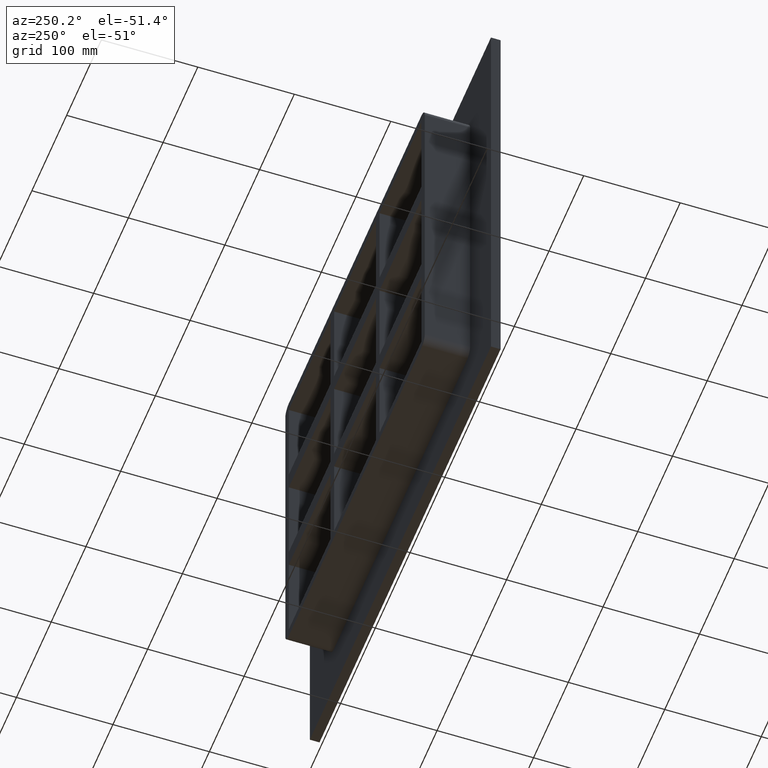
[diagram: clean part render]
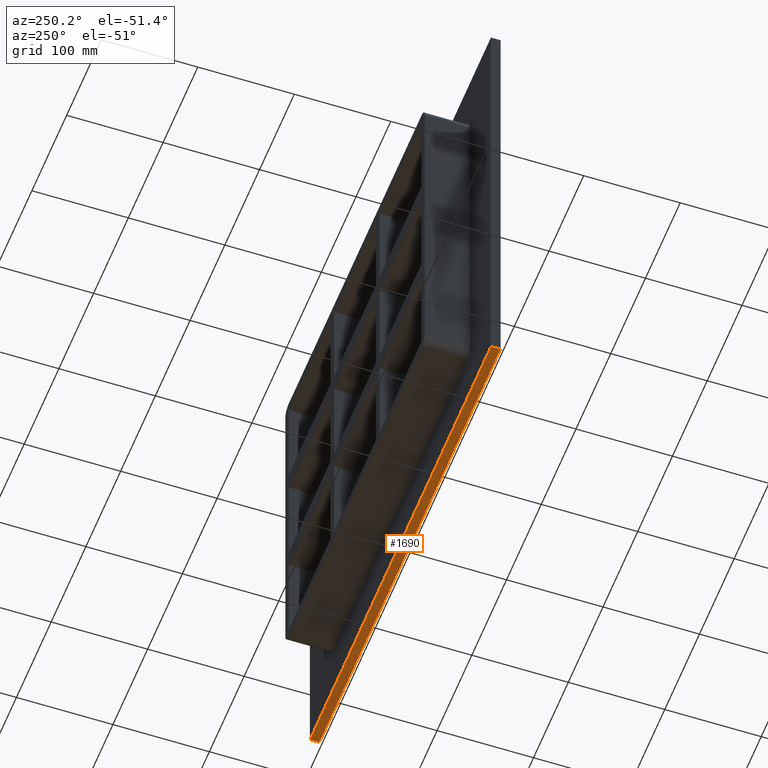
[diagram: same view with one face highlighted and labeled with its STEP entity id]
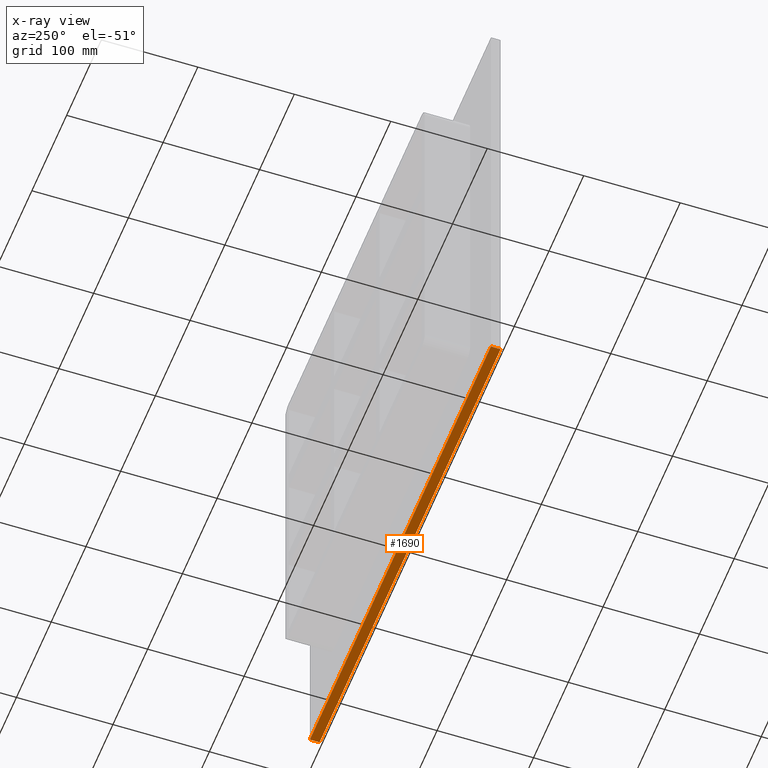
[diagram: x-ray of the same camera — body ghosted, the highlighted face saturated]
A machine part, auxiliary view. The second image highlights one B-rep face of the part: STEP entity #1690.
The next image is the same camera in x-ray: the body ghosted, the highlighted face saturated — about 0% of this face is hidden behind the body in this view.
In plain terms, the highlighted planar face has unit normal (0, 0, -1).
Its self-contained STEP definition (entity closure, byte-faithful):
#1447=CARTESIAN_POINT('',(260.75,10.0,-241.5));
#1448=VERTEX_POINT('',#1447);
#1455=CARTESIAN_POINT('',(-260.75,10.0,-241.5));
#1456=VERTEX_POINT('',#1455);
#1457=CARTESIAN_POINT('',(260.75,10.0,-241.5));
#1458=DIRECTION('',(-1.0,0.0,0.0));
#1459=VECTOR('',#1458,521.5);
#1460=LINE('',#1457,#1459);
#1461=EDGE_CURVE('',#1448,#1456,#1460,.T.);
#1557=CARTESIAN_POINT('',(-260.75,0.0,-241.5));
#1558=VERTEX_POINT('',#1557);
#1565=CARTESIAN_POINT('',(260.75,0.0,-241.5));
#1566=VERTEX_POINT('',#1565);
#1567=CARTESIAN_POINT('',(260.75,0.0,-241.5));
#1568=DIRECTION('',(-1.0,0.0,0.0));
#1569=VECTOR('',#1568,521.5);
#1570=LINE('',#1567,#1569);
#1571=EDGE_CURVE('',#1566,#1558,#1570,.T.);
#1665=CARTESIAN_POINT('',(-260.75,0.0,-241.5));
#1666=DIRECTION('',(0.0,1.0,0.0));
#1667=VECTOR('',#1666,10.0);
#1668=LINE('',#1665,#1667);
#1669=EDGE_CURVE('',#1558,#1456,#1668,.T.);
#1674=CARTESIAN_POINT('',(260.75,0.0,-241.5));
#1675=DIRECTION('',(0.0,0.0,-1.0));
#1676=DIRECTION('',(-1.0,0.0,0.0));
#1677=AXIS2_PLACEMENT_3D('',#1674,#1675,#1676);
#1678=PLANE('',#1677);
#1679=ORIENTED_EDGE('',*,*,#1571,.T.);
#1680=ORIENTED_EDGE('',*,*,#1669,.T.);
#1681=ORIENTED_EDGE('',*,*,#1461,.F.);
#1682=CARTESIAN_POINT('',(260.75,0.0,-241.5));
#1683=DIRECTION('',(0.0,1.0,0.0));
#1684=VECTOR('',#1683,10.0);
#1685=LINE('',#1682,#1684);
#1686=EDGE_CURVE('',#1566,#1448,#1685,.T.);
#1687=ORIENTED_EDGE('',*,*,#1686,.F.);
#1688=EDGE_LOOP('',(#1679,#1680,#1681,#1687));
#1689=FACE_OUTER_BOUND('',#1688,.T.);
#1690=ADVANCED_FACE('',(#1689),#1678,.T.);